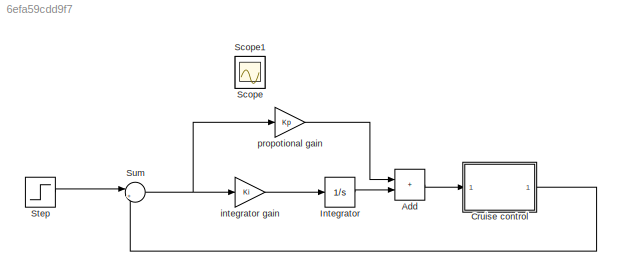
MODEL slx_6efa59cdd9f7
KIND model
CONFIG AbsTol = auto
CONFIG EnableMultiTasking = off
CONFIG FixedStep = auto
CONFIG MaxStep = auto
CONFIG MinStep = auto
CONFIG RelTol = 1e-3
CONFIG SampleTimeConstraint = Unconstrained
CONFIG SolverName = ode45
CONFIG StartTime = 0.0
CONFIG StopTime = 120
BLOCK [Sum] Add
  IconShape = rectangular
  Ports = [2, 1]
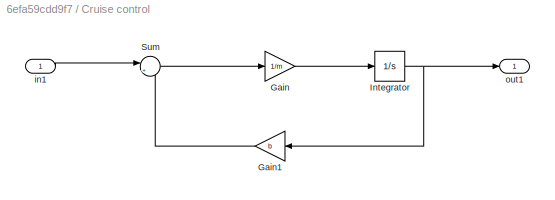
BLOCK [SubSystem] Cruise control 
  Ports = [1, 1]
  RequestExecContextInheritance = off
BLOCK [Gain] Cruise control /Gain
  Gain = 1/m
BLOCK [Gain] Cruise control /Gain1
  Gain = b
  NameLocation = top
BLOCK [Integrator] Cruise control /Integrator
  Ports = [1, 1]
BLOCK [Sum] Cruise control /Sum
  Inputs = |+-
  Ports = [2, 1]
BLOCK [Inport] Cruise control /in1
BLOCK [Outport] Cruise control /out1
BLOCK [Integrator] Integrator
  Ports = [1, 1]
BLOCK [Scope] Scope
  Floating = off
  IOType = viewer
  NumInputPorts = 1
  Ports = []
  ScopeSpecificationString = Simulink.scopes.TimeScopeBlockCfg('CurrentConfiguration', extmgr.ConfigurationSet(extmgr.Configuration('Core','General UI',true),extmgr.Configuration('Core','Source UI',true),extmgr.Configuration('Sources','WiredSimulink',true),extmgr.Configuration('Visuals','Time Domain',true,'SerializedDisplays',{struct('MinYLimReal','-0.125','MaxYLimReal','1.125','YLabelReal','','MinYLimMag','0.00000','MaxYLimM...<+1349ch>
BLOCK [Scope] Scope1
  Floating = off
  IOType = viewer
  NumInputPorts = 1
  Ports = []
  ScopeSpecificationString = Simulink.scopes.TimeScopeBlockCfg('CurrentConfiguration', extmgr.ConfigurationSet(extmgr.Configuration('Core','General UI',true),extmgr.Configuration('Core','Source UI',true),extmgr.Configuration('Sources','WiredSimulink',true,'DataLoggingVariableName','ScopeData1'),extmgr.Configuration('Visuals','Time Domain',true,'SerializedDisplays',{struct('MinYLimReal','-0.125','MaxYLimReal','1.125','YLabelRe...<+1391ch>
BLOCK [Step] Step
  SampleTime = 0
BLOCK [Sum] Sum
  Inputs = |+-
  Ports = [2, 1]
BLOCK [Gain] integrator gain
  Gain = Ki
BLOCK [Gain] propotional gain
  Gain = Kp
LINE Add:1 -> Cruise control :1
LINE Cruise control /Gain1:1 -> Cruise control /Sum:2
LINE Cruise control /Gain:1 -> Cruise control /Integrator:1
NET Cruise control /Integrator:1 -> Cruise control /Gain1:1, Cruise control /out1:1
LINE Cruise control /Sum:1 -> Cruise control /Gain:1
LINE Cruise control /in1:1 -> Cruise control /Sum:1
LINE Cruise control :1 -> Sum:2
LINE Integrator:1 -> Add:2
LINE Step:1 -> Sum:1
NET Sum:1 -> integrator gain:1, propotional gain:1
LINE integrator gain:1 -> Integrator:1
LINE propotional gain:1 -> Add:1
note: NET lines group one-source signal fan-out (src -> all destinations, sorted); 1:1 wires keep LINE
